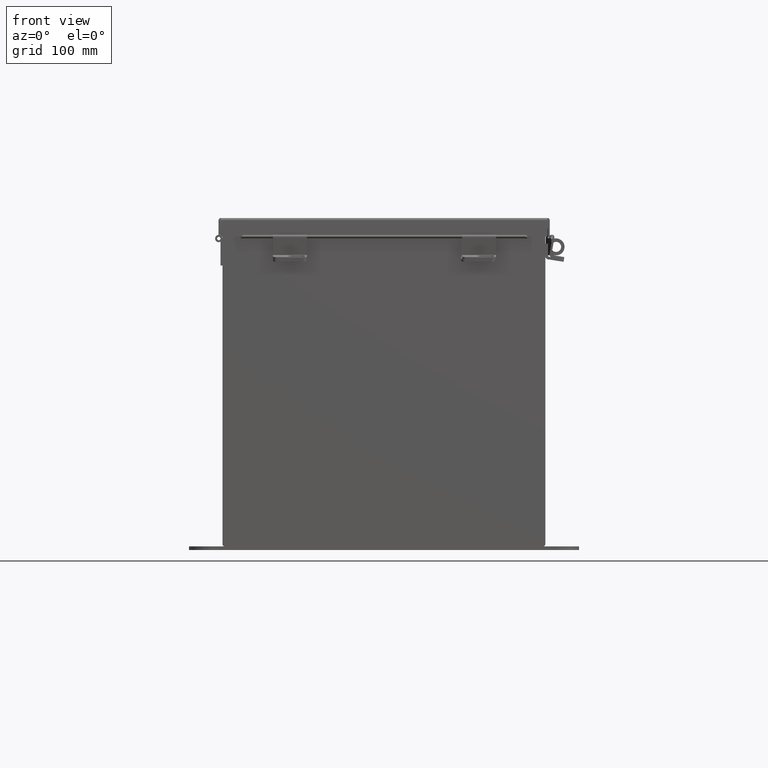
[diagram: clean part render]
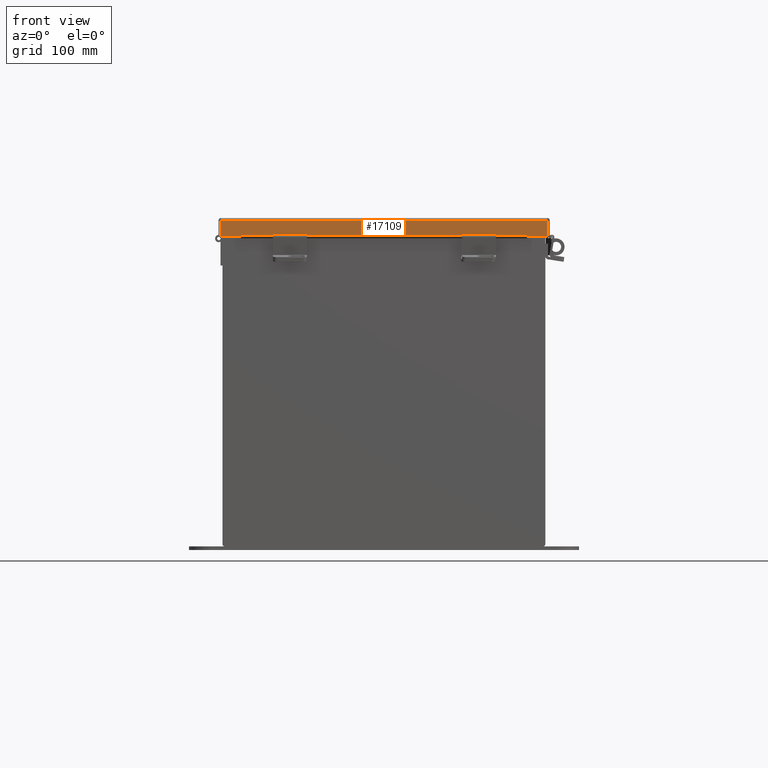
[diagram: same view with one face highlighted and labeled with its STEP entity id]
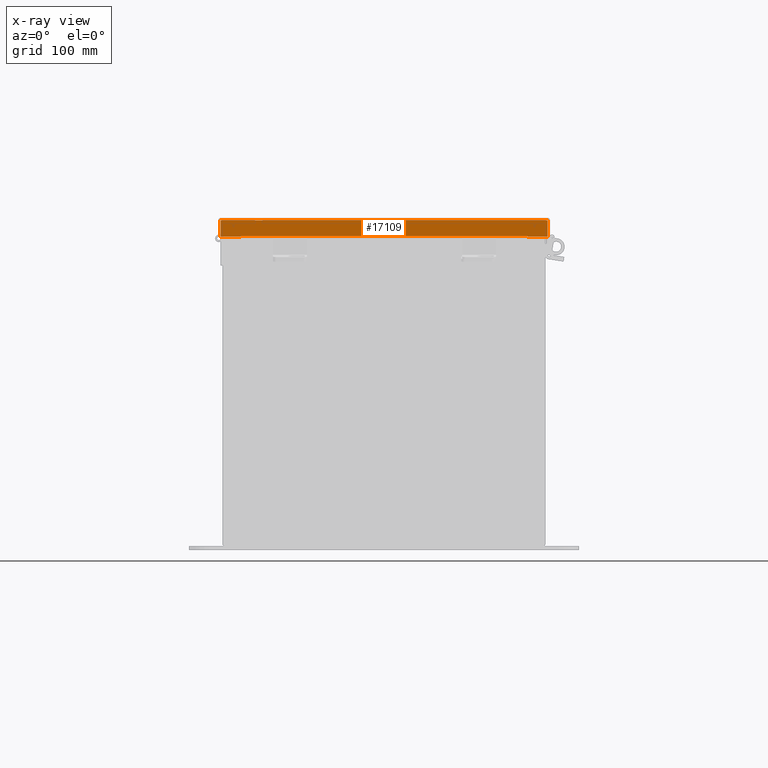
[diagram: x-ray of the same camera — body ghosted, the highlighted face saturated]
A machine part, front view. The second image highlights one B-rep face of the part: STEP entity #17109.
The next image is the same camera in x-ray: the body ghosted, the highlighted face saturated — about 0% of this face is hidden behind the body in this view.
In plain terms, the highlighted planar face has unit normal (0, 1, -0).
Its self-contained STEP definition (entity closure, byte-faithful):
#69 = VERTEX_POINT ( 'NONE', #2014 ) ;
#108 = VECTOR ( 'NONE', #10229, 39.37007874015748100 ) ;
#652 = VERTEX_POINT ( 'NONE', #7595 ) ;
#684 = ORIENTED_EDGE ( 'NONE', *, *, #10942, .T. ) ;
#708 = EDGE_CURVE ( 'NONE', #16280, #69, #758, .T. ) ;
#758 = LINE ( 'NONE', #15638, #15967 ) ;
#1193 = VECTOR ( 'NONE', #3518, 39.37007874015748100 ) ;
#1247 = VERTEX_POINT ( 'NONE', #17838 ) ;
#1556 = ORIENTED_EDGE ( 'NONE', *, *, #17743, .F. ) ;
#1780 = ORIENTED_EDGE ( 'NONE', *, *, #708, .F. ) ;
#1868 = VECTOR ( 'NONE', #7709, 39.37007874015748100 ) ;
#2014 = CARTESIAN_POINT ( 'NONE',  ( 5.324478932188133000, -9.156250000000023100, 0.5967115427318782100 ) ) ;
#2501 = ORIENTED_EDGE ( 'NONE', *, *, #12018, .F. ) ;
#2860 = DIRECTION ( 'NONE',  ( 7.009925220120440900E-014, -7.009925220120440900E-014, -1.000000000000000000 ) ) ;
#3461 = CARTESIAN_POINT ( 'NONE',  ( -6.074478932188135600, -9.156250000000021300, 0.0000000000000000000 ) ) ;
#3518 = DIRECTION ( 'NONE',  ( -1.000000000000000000, 4.576200904783578200E-029, 5.546899479520645900E-018 ) ) ;
#3610 = ORIENTED_EDGE ( 'NONE', *, *, #4142, .T. ) ;
#3648 = CARTESIAN_POINT ( 'NONE',  ( 6.074478932188137400, -9.156250000000021300, 0.01300000000000010700 ) ) ;
#3977 = CARTESIAN_POINT ( 'NONE',  ( 3.201384367575308500E-018, -9.156250000000023100, 0.6122999999999982900 ) ) ;
#4087 = ORIENTED_EDGE ( 'NONE', *, *, #15466, .T. ) ;
#4142 = EDGE_CURVE ( 'NONE', #4324, #18671, #16022, .T. ) ;
#4270 = DIRECTION ( 'NONE',  ( 1.000000000000000000, -4.576273056739371600E-029, -0.0000000000000000000 ) ) ;
#4324 = VERTEX_POINT ( 'NONE', #3648 ) ;
#4664 = CARTESIAN_POINT ( 'NONE',  ( -5.324478932188133000, -9.156250000000023100, 0.6123000000000005100 ) ) ;
#4952 = CARTESIAN_POINT ( 'NONE',  ( -1.173840934777613000E-017, -9.156250000000021300, -3.496765431890256900E-014 ) ) ;
#5155 = ORIENTED_EDGE ( 'NONE', *, *, #7953, .F. ) ;
#5315 = LINE ( 'NONE', #12234, #1868 ) ;
#5543 = VECTOR ( 'NONE', #2860, 39.37007874015748100 ) ;
#5672 = AXIS2_PLACEMENT_3D ( 'NONE', #4952, #7644, #15084 ) ;
#5791 = LINE ( 'NONE', #3461, #17085 ) ;
#6158 = CARTESIAN_POINT ( 'NONE',  ( 3.201384367575308500E-018, -9.156250000000023100, 0.6122999999999982900 ) ) ;
#6202 = DIRECTION ( 'NONE',  ( -0.0000000000000000000, -3.569293475308526100E-015, 1.000000000000000000 ) ) ;
#6760 = DIRECTION ( 'NONE',  ( 0.0000000000000000000, -3.569293475308526100E-015, 1.000000000000000000 ) ) ;
#6920 = CARTESIAN_POINT ( 'NONE',  ( -5.324478932188133000, -9.156250000000026600, 0.6122999999999982900 ) ) ;
#7349 = CARTESIAN_POINT ( 'NONE',  ( -5.324478932188132100, -9.156250000000023100, 0.5967115427318782100 ) ) ;
#7595 = CARTESIAN_POINT ( 'NONE',  ( -6.074478932188135600, -9.156250000000023100, 0.6123000000000005100 ) ) ;
#7644 = DIRECTION ( 'NONE',  ( -4.553115113234966800E-029, 1.000000000000000000, 3.569293475308526100E-015 ) ) ;
#7709 = DIRECTION ( 'NONE',  ( -1.000000000000000000, 4.576273056739371600E-029, -0.0000000000000000000 ) ) ;
#7953 = EDGE_CURVE ( 'NONE', #4324, #15451, #5315, .T. ) ;
#8990 = ORIENTED_EDGE ( 'NONE', *, *, #15671, .F. ) ;
#9114 = CARTESIAN_POINT ( 'NONE',  ( 5.324478932188133000, -9.156250000000028400, 0.5967115427318782100 ) ) ;
#9212 = PLANE ( 'NONE',  #5672 ) ;
#9214 = EDGE_LOOP ( 'NONE', ( #1556, #684, #8990, #5155, #3610, #4087, #2501, #1780 ) ) ;
#9390 = LINE ( 'NONE', #6920, #5543 ) ;
#9554 = CARTESIAN_POINT ( 'NONE',  ( 6.074478932188135600, -9.156250000000021300, -3.278217592397115700E-014 ) ) ;
#9651 = VERTEX_POINT ( 'NONE', #4664 ) ;
#9823 = LINE ( 'NONE', #6158, #13288 ) ;
#10229 = DIRECTION ( 'NONE',  ( 1.735493991486226000E-029, 1.401985044024057400E-013, 1.000000000000000000 ) ) ;
#10942 = EDGE_CURVE ( 'NONE', #9651, #652, #9823, .T. ) ;
#11834 = LINE ( 'NONE', #9114, #108 ) ;
#12018 = EDGE_CURVE ( 'NONE', #69, #1247, #11834, .T. ) ;
#12234 = CARTESIAN_POINT ( 'NONE',  ( -6.156249999999998200, -9.156250000000021300, 0.01300000000000010700 ) ) ;
#12452 = LINE ( 'NONE', #3977, #1193 ) ;
#13288 = VECTOR ( 'NONE', #16066, 39.37007874015748100 ) ;
#15084 = DIRECTION ( 'NONE',  ( 0.0000000000000000000, -3.569293475308526100E-015, 1.000000000000000000 ) ) ;
#15451 = VERTEX_POINT ( 'NONE', #17921 ) ;
#15466 = EDGE_CURVE ( 'NONE', #18671, #1247, #12452, .T. ) ;
#15638 = CARTESIAN_POINT ( 'NONE',  ( -5.324478932188133000, -9.156250000000028400, 0.5967115427318782100 ) ) ;
#15671 = EDGE_CURVE ( 'NONE', #15451, #652, #5791, .T. ) ;
#15967 = VECTOR ( 'NONE', #4270, 39.37007874015748100 ) ;
#16022 = LINE ( 'NONE', #9554, #16492 ) ;
#16066 = DIRECTION ( 'NONE',  ( -1.000000000000000000, 4.576200904783578200E-029, 5.546899479520645900E-018 ) ) ;
#16140 = FACE_OUTER_BOUND ( 'NONE', #9214, .T. ) ;
#16280 = VERTEX_POINT ( 'NONE', #7349 ) ;
#16492 = VECTOR ( 'NONE', #6760, 39.37007874015748100 ) ;
#17085 = VECTOR ( 'NONE', #6202, 39.37007874015748100 ) ;
#17109 = ADVANCED_FACE ( 'NONE', ( #16140 ), #9212, .F. ) ;
#17743 = EDGE_CURVE ( 'NONE', #9651, #16280, #9390, .T. ) ;
#17838 = CARTESIAN_POINT ( 'NONE',  ( 5.324478932188132100, -9.156250000000023100, 0.6123000000000005100 ) ) ;
#17921 = CARTESIAN_POINT ( 'NONE',  ( -6.074478932188137400, -9.156250000000021300, 0.01300000000000010700 ) ) ;
#18671 = VERTEX_POINT ( 'NONE', #18741 ) ;
#18741 = CARTESIAN_POINT ( 'NONE',  ( 6.074478932188137400, -9.156250000000023100, 0.6123000000000005100 ) ) ;